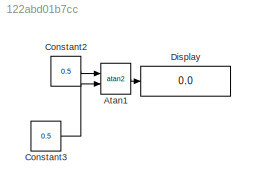
MODEL slx_122abd01b7cc
KIND model
CONFIG AbsTol = auto
CONFIG EnableMultiTasking = off
CONFIG FixedStep = auto
CONFIG MaxStep = auto
CONFIG MinStep = auto
CONFIG RelTol = 1e-3
CONFIG SampleTimeConstraint = Unconstrained
CONFIG Solver = VariableStepAuto
CONFIG SolverName = VariableStepAuto
CONFIG StartTime = 0.0
CONFIG StopTime = 10.0
BLOCK [Trigonometry] Atan1
  Operator = atan2
  Ports = [2, 1]
BLOCK [Constant] Constant2
  Value = 0.5
BLOCK [Constant] Constant3
  Value = 0.5
BLOCK [Display] Display
  Decimation = 1
  Ports = [1]
LINE Atan1:1 -> Display:1
LINE Constant2:1 -> Atan1:1
LINE Constant3:1 -> Atan1:2
